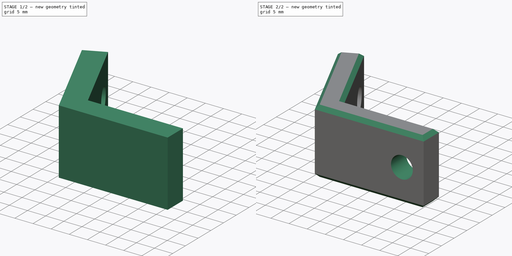
[diagram: build sequence overview — one tinted view per stage of 2, left to right]
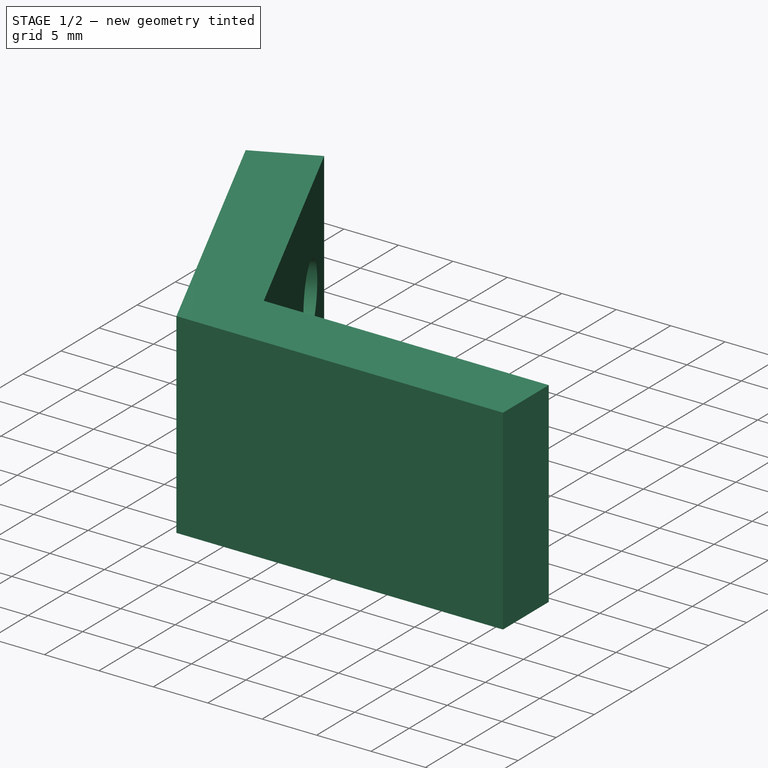
[diagram: stage 1 of 2 — iso view after this stage's code; geometry added in this stage tinted green]
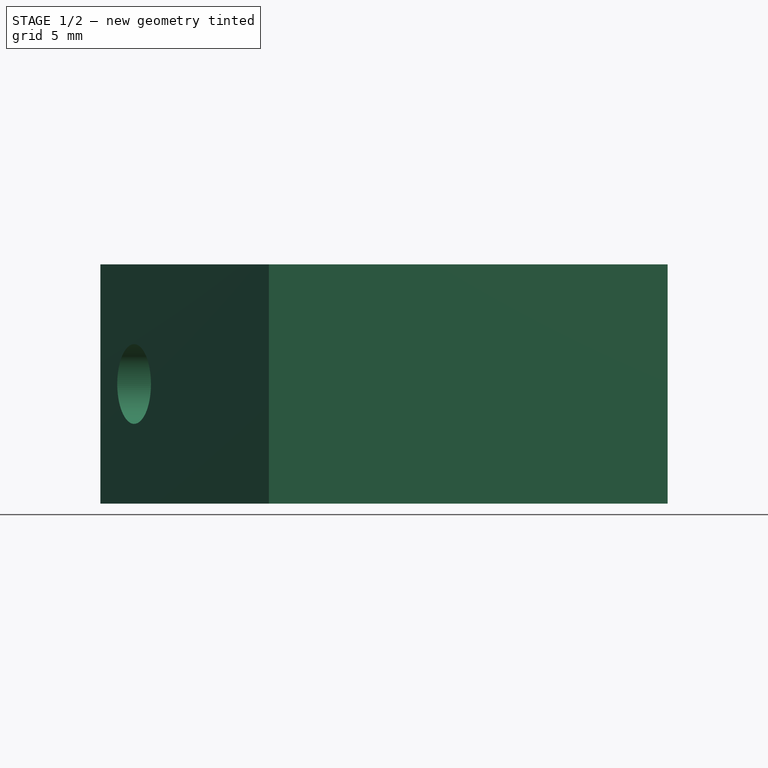
[diagram: stage 1 of 2 — front view after this stage's code; geometry added in this stage tinted green]
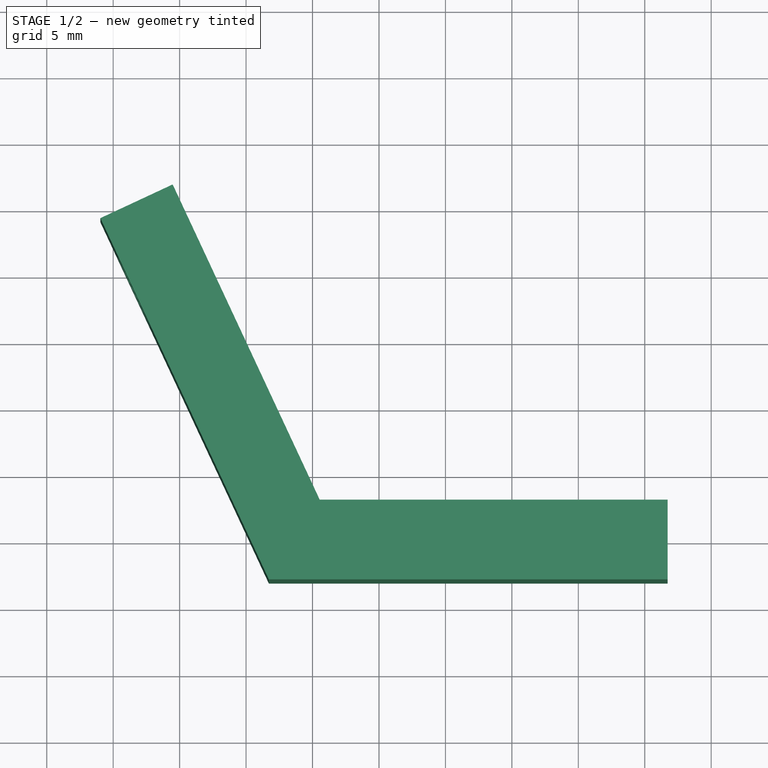
[diagram: stage 1 of 2 — top view after this stage's code; geometry added in this stage tinted green]
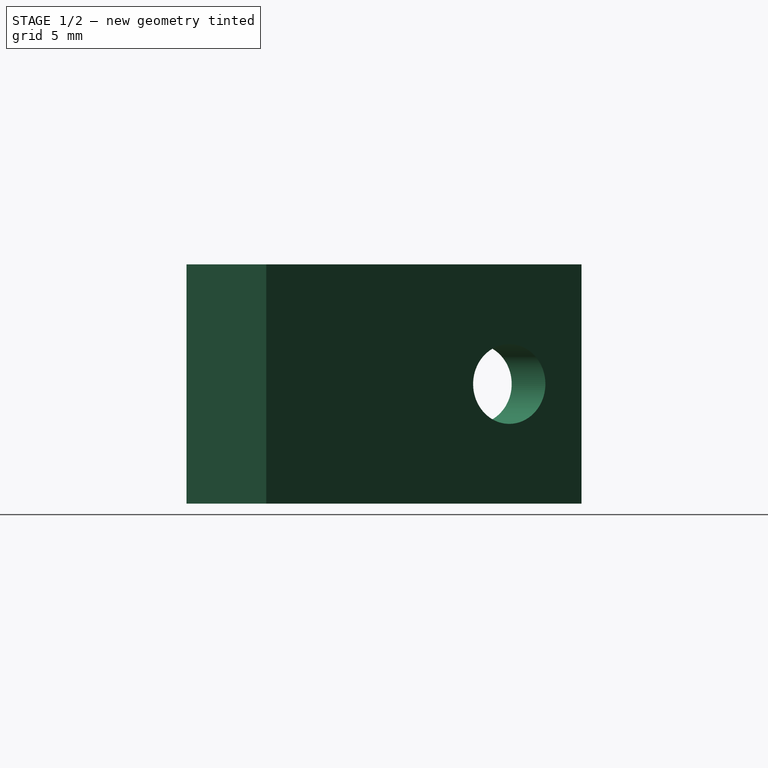
[diagram: stage 1 of 2 — right view after this stage's code; geometry added in this stage tinted green]
FCSTD DOCUMENT  (FreeCAD 0.18.4R)
Label: backbracket
License: All rights reserved
LicenseURL: http://en.wikipedia.org/wiki/All_rights_reserved
objects: Sketcher::SketchObject×3, PartDesign::Pocket×2, PartDesign::Pad×1, PartDesign::Chamfer×1, PartDesign::Body×1
note: 11 computed .brp shape members not serialized (recipe doc carries the construction recipe); baked Part::Feature solids carry a one-line shape summary decoded from their .brp

FEATURE [Sketcher::SketchObject] Sketch
  MapMode = 5
  Support = -> [XY_Plane]
  sketch-geometry (6):
    g0: LineSegment StartX=-8.28191 StartY=-13 StartZ=0 EndX=-20.9605 EndY=14.1892 EndZ=0
    g1: LineSegment StartX=-8.28191 StartY=-13 StartZ=0 EndX=21.7181 EndY=-13 EndZ=0
    g2: LineSegment StartX=-20.9605 StartY=14.1892 StartZ=0 EndX=-15.5226 EndY=16.7249 EndZ=0
    g3: LineSegment StartX=21.7181 StartY=-13 StartZ=0 EndX=21.7181 EndY=-7 EndZ=0
    g4: LineSegment StartX=-15.5226 StartY=16.7249 StartZ=0 EndX=-4.45949 EndY=-7 EndZ=0
    g5: LineSegment StartX=-4.45949 StartY=-7 StartZ=0 EndX=21.7181 EndY=-7 EndZ=0
  constraints (18):
    c: Coincident(g0,g1)
    c: Horizontal(g1)
    c: Angle(g1,g0) = 2.00713
    c: DistanceY(g0,g-1) = 13
    c: Distance(g-1,g0) = 13
    c: Coincident(g2,g0)
    c: Coincident(g3,g1)
    c: Vertical(g3)
    c: Perpendicular(g0,g2)
    c: Distance(g2) = 6
    c: Distance(g3) = 6
    c: Coincident(g2,g4)
    c: Coincident(g4,g5)
    c: Coincident(g5,g3)
    c: Horizontal(g5)
    c: Distance(g0) = 30
    c: Equal(g1,g0)
    c: Perpendicular(g2,g4)
FEATURE [PartDesign::Pad] Pad
  Length = 18
  Length2 = 100
  Profile = -> Sketch
  Refine = true
  Type = 0
FEATURE [Sketcher::SketchObject] Sketch001  label="screw1"
  ExternalGeometry = -> [Pad]
  MapMode = 5
  Placement = pos=(-11.782,-5.49404,0) rot=(0.742942,-0.473306,-0.473306;1.86366rad)
  Support = -> [Pad]
  sketch-geometry (3):
    g0: Circle CenterX=-15.7181 CenterY=9 CenterZ=0 NormalX=0 NormalY=0 NormalZ=1 AngleXU=0 Radius=3
    g1: LineSegment [constr] StartX=-21.7181 StartY=2.3e-15 StartZ=0 EndX=-21.7181 EndY=9 EndZ=0
    g2: LineSegment [constr] StartX=-21.7181 StartY=9 StartZ=0 EndX=-21.7181 EndY=18 EndZ=0
  constraints (8):
    c: Radius(g0) = 3
    c: Coincident(g1,g-4)
    c: Coincident(g1,g2)
    c: Coincident(g2,g-3)
    c: Vertical(g2)
    c: Equal(g2,g1)
    c: Horizontal(g0,g1)
    c: DistanceX(g1,g0) = 6
FEATURE [PartDesign::Pocket] Pocket
  BaseFeature = -> Pad
  Length = 5
  Length2 = 100
  Profile = -> Sketch001
  Refine = true
  Type = 1
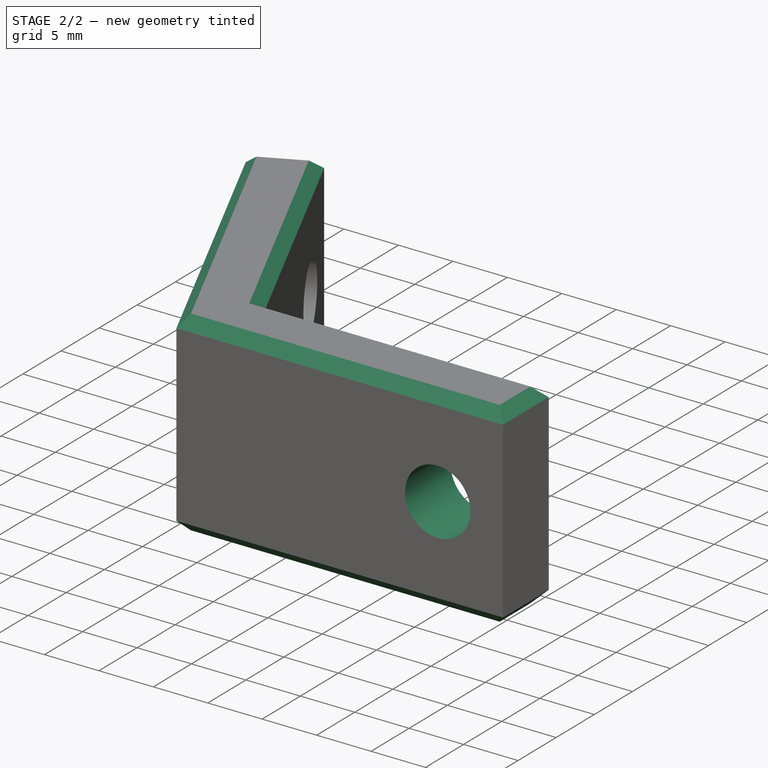
[diagram: stage 2 of 2 — iso view after this stage's code; geometry added in this stage tinted green]
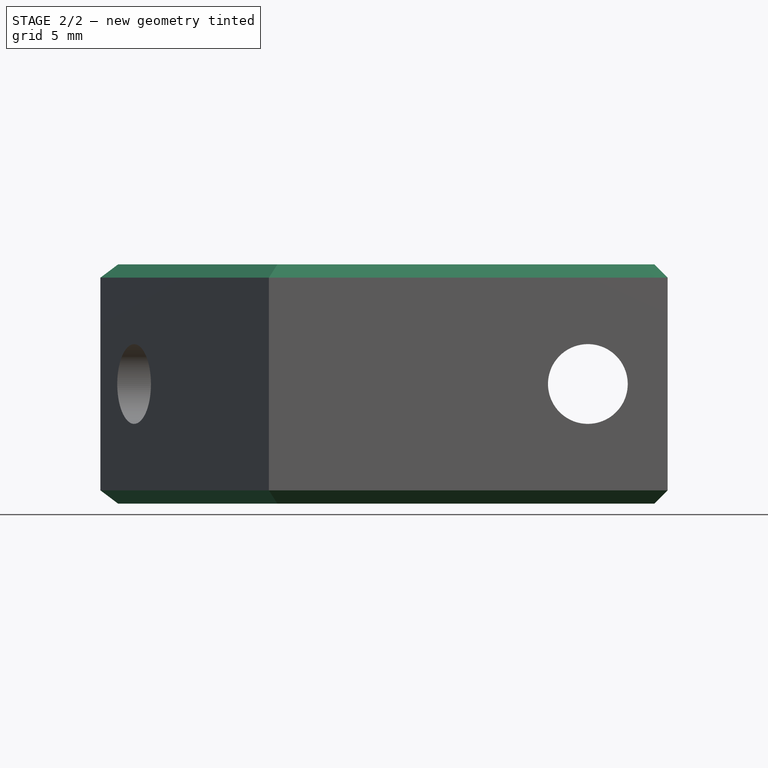
[diagram: stage 2 of 2 — front view after this stage's code; geometry added in this stage tinted green]
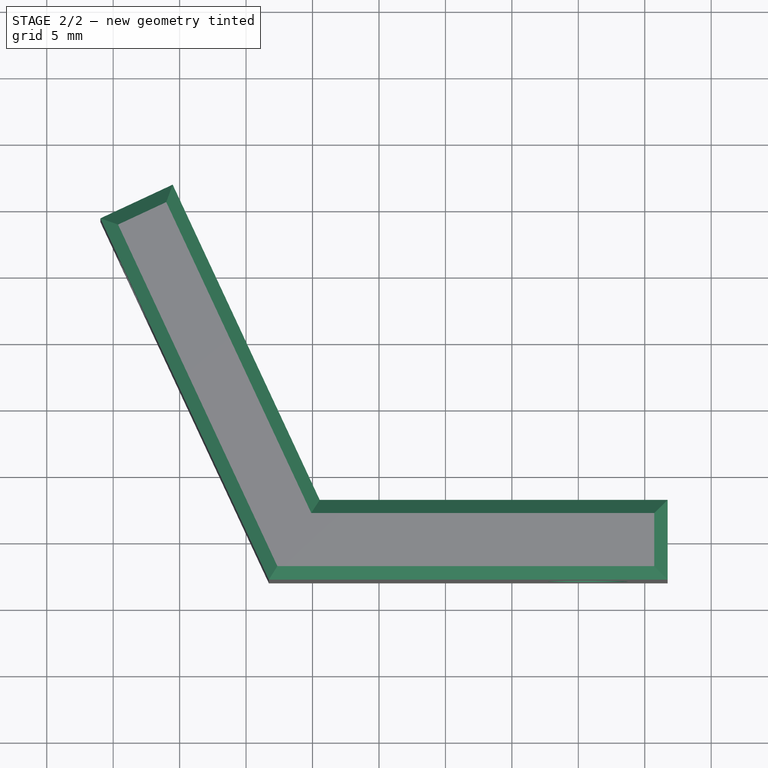
[diagram: stage 2 of 2 — top view after this stage's code; geometry added in this stage tinted green]
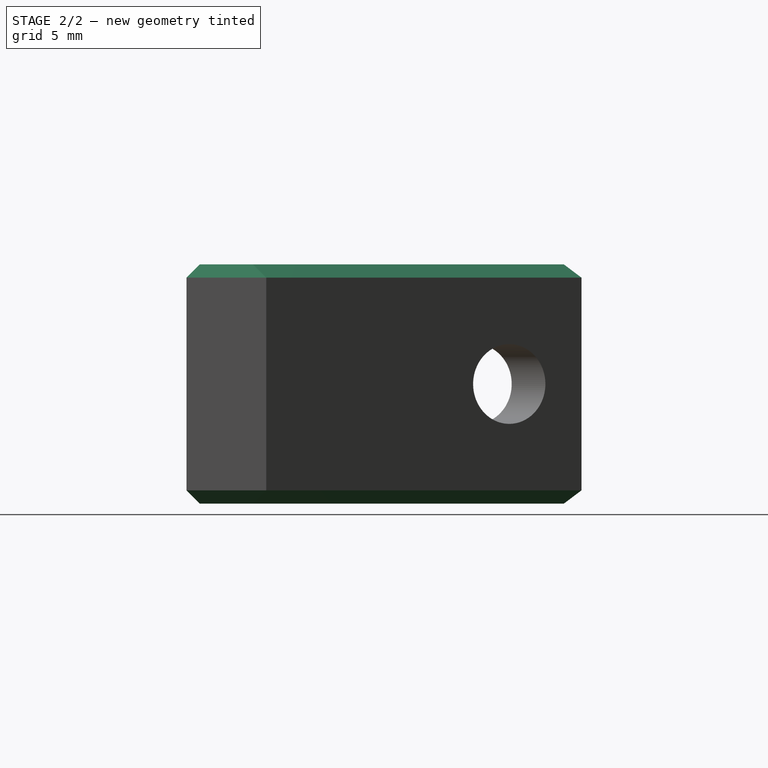
[diagram: stage 2 of 2 — right view after this stage's code; geometry added in this stage tinted green]
FEATURE [Sketcher::SketchObject] Sketch002
  ExternalGeometry = -> [Pocket]
  MapMode = 5
  Placement = pos=(0,-13,0) rot=(1,0,0;1.5708rad)
  Support = -> [Pocket]
  sketch-geometry (3):
    g0: LineSegment [constr] StartX=21.7181 StartY=18 StartZ=0 EndX=21.7181 EndY=9 EndZ=0
    g1: LineSegment [constr] StartX=21.7181 StartY=9 StartZ=0 EndX=21.7181 EndY=0 EndZ=0
    g2: Circle CenterX=15.7181 CenterY=9 CenterZ=0 NormalX=0 NormalY=0 NormalZ=1 AngleXU=0 Radius=3
  constraints (8):
    c: Coincident(g0,g-4)
    c: Vertical(g0)
    c: Coincident(g0,g1)
    c: Coincident(g1,g-3)
    c: Equal(g0,g1)
    c: Radius(g2) = 3
    c: Horizontal(g0,g2)
    c: DistanceX(g2,g1) = 6
FEATURE [PartDesign::Pocket] Pocket001
  BaseFeature = -> Pocket
  Length = 5
  Length2 = 100
  Profile = -> Sketch002
  Refine = true
  Type = 1
FEATURE [PartDesign::Chamfer] Chamfer
  Base = -> Pocket001 [Face4,Face3]
  BaseFeature = -> Pocket001
  Size = 1
FEATURE [PartDesign::Body] Body
  Group = -> [Sketch,Pad,Sketch001,Pocket,Sketch002,Pocket001,Chamfer]
  Origin = -> Origin
  Tip = -> Chamfer
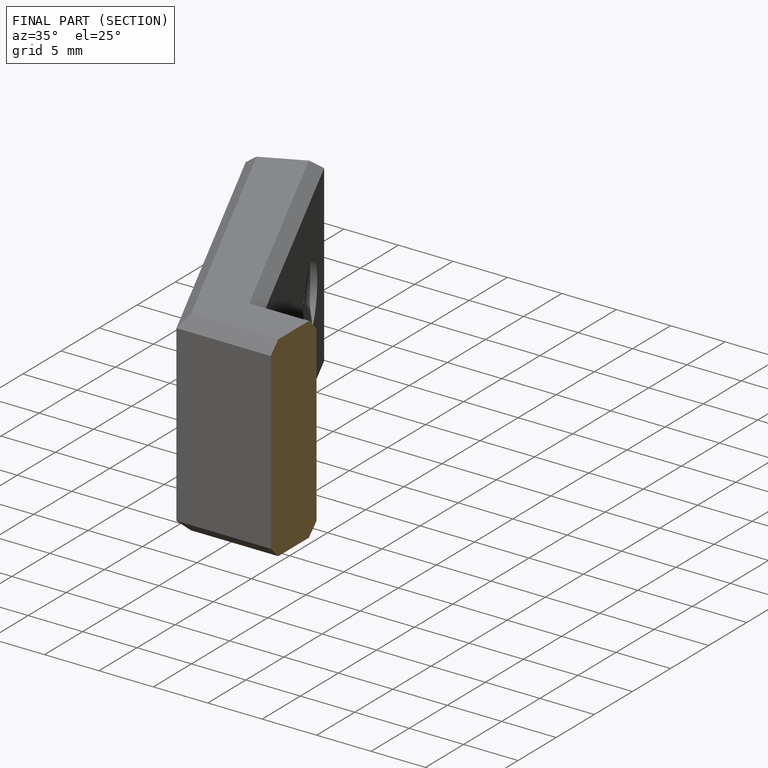
[diagram: finished part — half-section view (interior)]
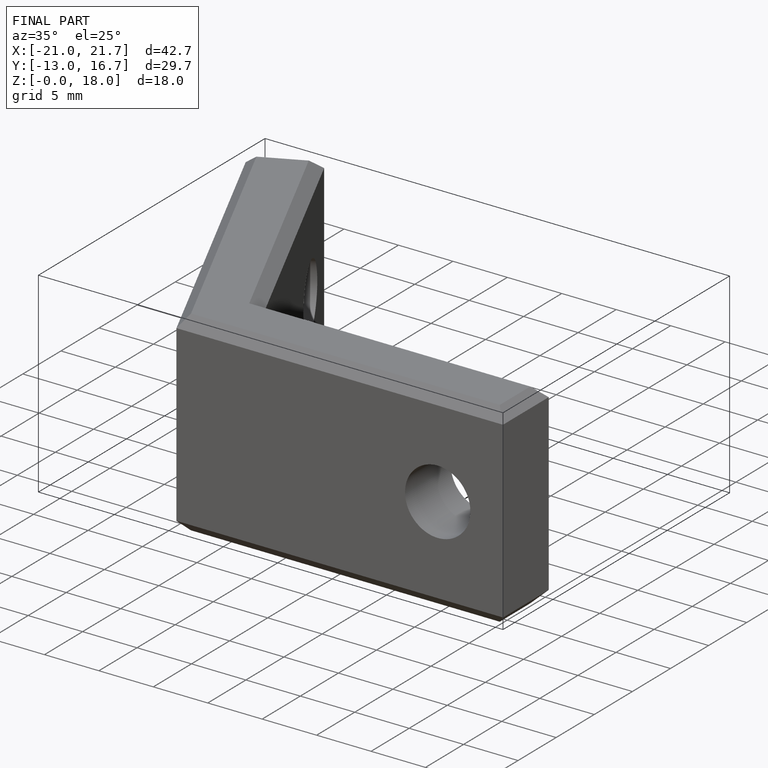
[diagram: finished part — iso view with bounding-box wireframe]
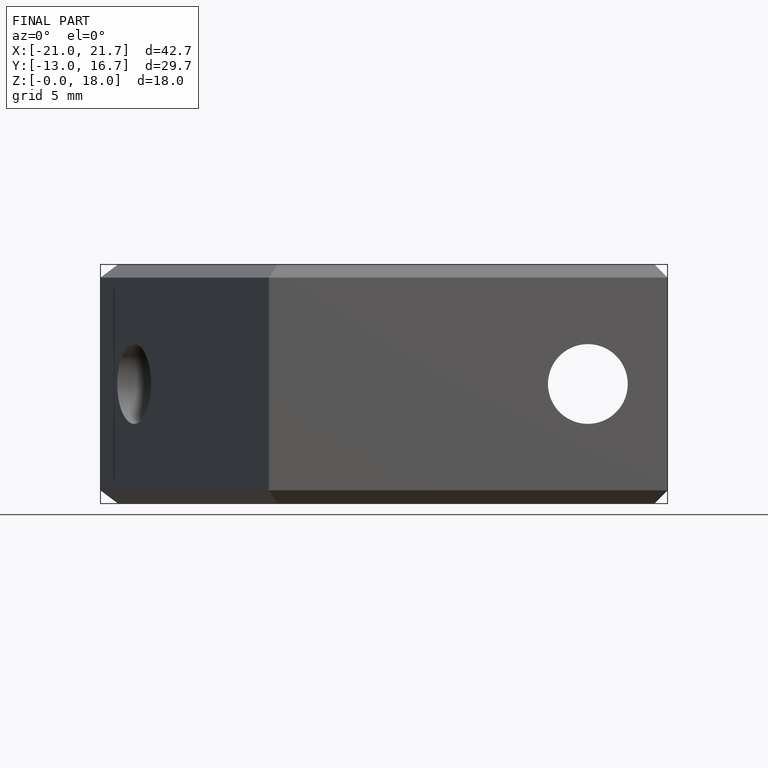
[diagram: finished part — front view with bounding-box wireframe]
